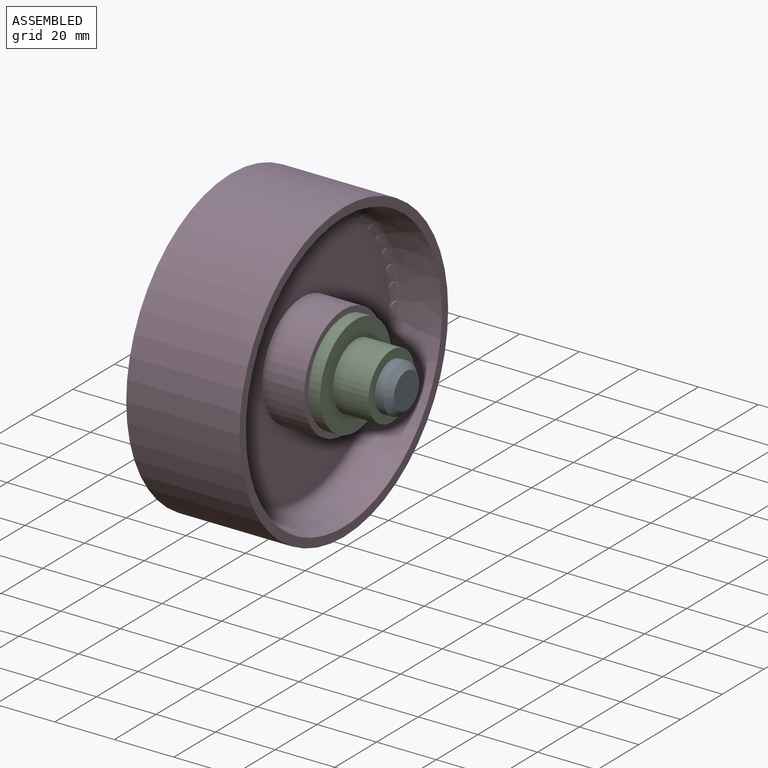
[diagram: assembled view]
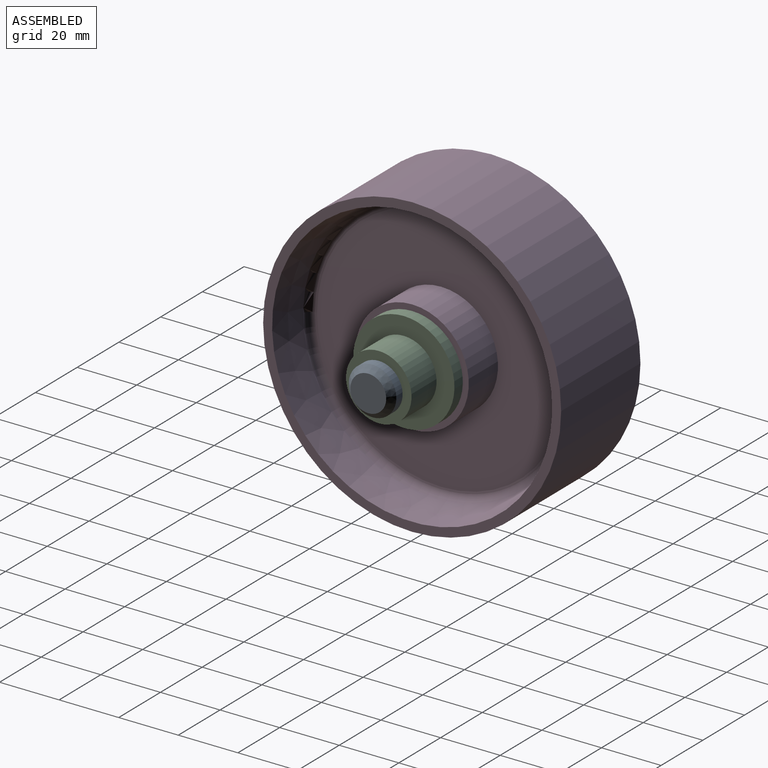
[diagram: assembled view, second angle]
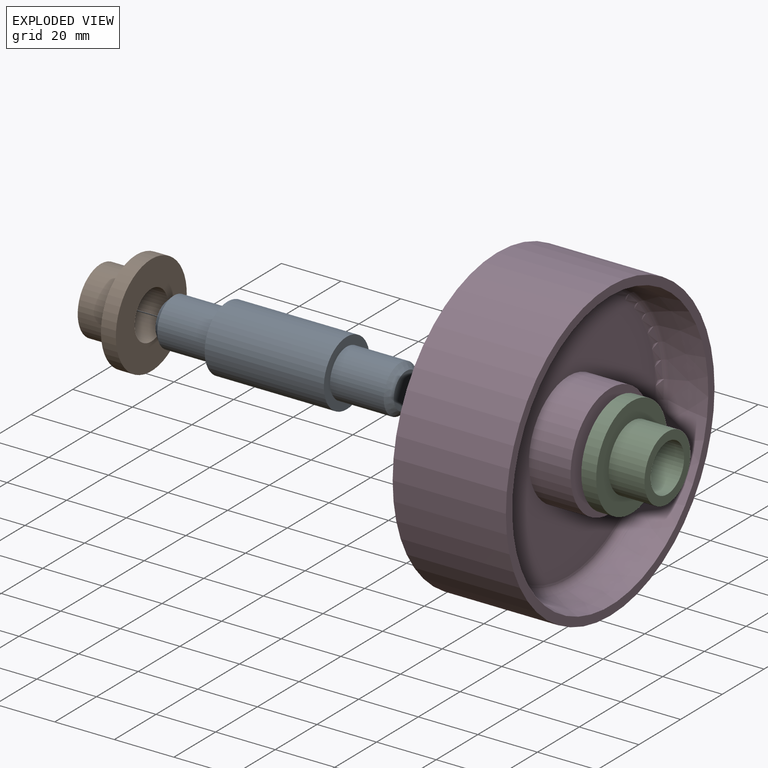
[diagram: exploded view]
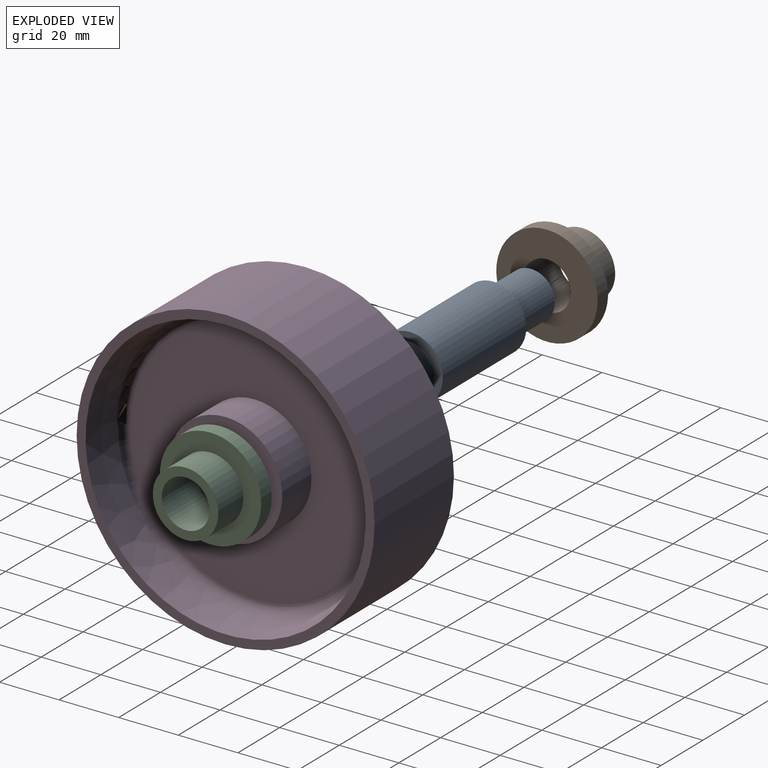
[diagram: exploded view, second angle]
ASSEMBLY  parts=4 mates=3
PART A: 9 faces, bbox 80x22x22 mm
  f0: plane 12x12mm, normal (-1,0,0), area 113.1mm2, adj f8
  f1: plane 12x12mm, normal (1,0,0), area 113.1mm2, adj f7
  f2: cylinder r=8mm len=18mm, axis (1,0,0), area 904.8mm2, adj f3,f7
  f3: plane 22x22mm, normal (1,0,0), area 179.1mm2, adj f2,f4
  f4: cylinder r=11mm len=40mm, axis (1,0,0), area 2764.6mm2, adj f3,f5
  f5: plane 22x22mm, normal (-1,0,0), area 179.1mm2, adj f4,f6
  f6: cylinder r=8mm len=18mm, axis (1,0,0), area 904.8mm2, adj f5,f8
  f7: cone r=6mm half-angle=45deg, axis (-1,0,0), area 124.4mm2, adj f1,f2
  f8: cone r=8mm half-angle=45deg, axis (1,0,0), area 124.4mm2, adj f0,f6
PART B: 6 faces, bbox 17x34x34 mm
  f0: plane 22x22mm, normal (-1,0,0), area 179.1mm2, adj f1,f5
  f1: cylinder r=8mm len=17mm, axis (-1,0,0), area 854.5mm2, adj f0,f2
  f2: plane 34x34mm, normal (1,0,0), area 706.9mm2, adj f1,f3
  f3: cylinder r=17mm len=34mm, axis (-1,0,0), area 534.1mm2, adj f2,f4
  f4: plane 34x34mm, normal (-1,0,0), area 527.8mm2, adj f3,f5
  f5: cylinder r=11mm len=22mm, axis (-1,0,0), area 829.4mm2, adj f0,f4
PART C: same geometry as B
PART D: 14 faces, bbox 38x100x100 mm
  f0: cylinder r=11mm len=38mm, axis (-1,0,0), area 2626.4mm2, adj f1,f13
  f1: plane 38x38mm, normal (1,0,0), area 754mm2, adj f0,f2
  f2: cylinder r=19mm len=38mm, axis (-1,0,0), area 1671.3mm2, adj f1,f3
  f3: plane 83.44x83.44mm, normal (1,0,0), area 4333.7mm2, adj f2,f4
  f4: torus R=41.72mm, axis (-1,0,0), area 1123.9mm2, adj f3,f5
  f5: cone r=44.66mm half-angle=11.4deg, axis (1,0,0), area 3405.8mm2, adj f4,f6
  f6: plane 100x100mm, normal (1,0,0), area 914.2mm2, adj f5,f7
  f7: cylinder r=50mm len=100mm, axis (-1,0,0), area 11938.1mm2, adj f6,f8
  f8: plane 100x100mm, normal (-1,0,0), area 914.2mm2, adj f7,f9
  f9: cone r=44.66mm half-angle=11.4deg, axis (-1,0,0), area 3405.8mm2, adj f8,f10
  f10: torus R=41.72mm, axis (-1,0,0), area 1123.9mm2, adj f9,f11
  f11: plane 83.44x83.44mm, normal (-1,0,0), area 4333.7mm2, adj f10,f12
  f12: cylinder r=19mm len=38mm, axis (-1,0,0), area 1671.3mm2, adj f11,f13
  f13: plane 38x38mm, normal (-1,0,0), area 754mm2, adj f0,f12
PLACE A t=(-99.89,-0.17,-0.1)mm
PLACE B t=(-94.89,-0.17,-0.1)mm
PLACE C rot(axis=(0,0,1),180deg) t=(-24.89,-0.17,-0.1)mm
PLACE D t=(-59.89,-0.17,-0.1)mm
MATE revolute A.f2 <-> D.f0  axis (1,0,0) through (-59.89,-0.17,-0.1)mm
MATE revolute B.f1 <-> A.f2  axis (-1,0,0) through (-88.89,-0.17,-0.1)mm
MATE revolute C.f1 <-> A.f2  axis (1,0,0) through (-30.89,-0.17,-0.1)mm
